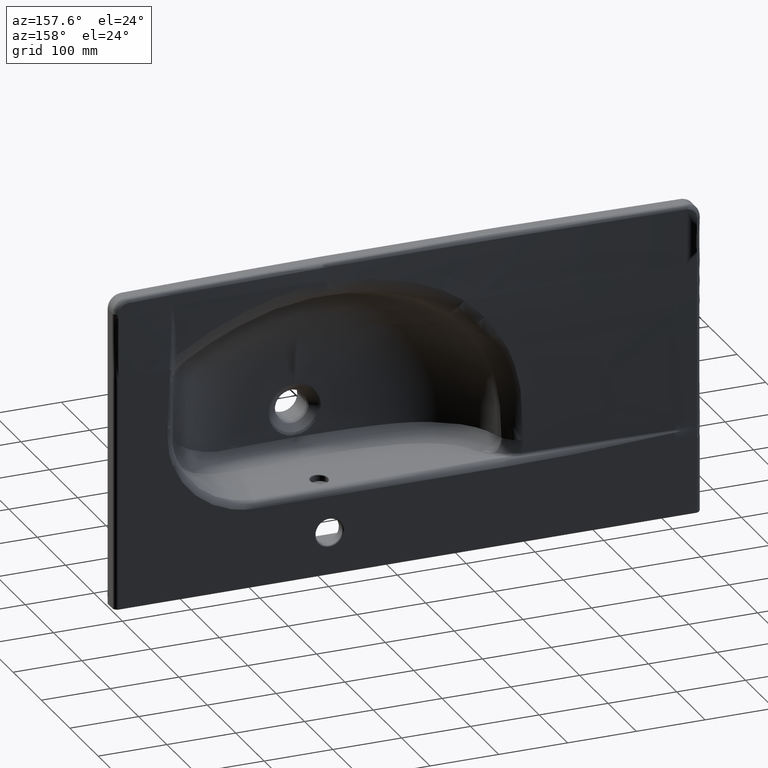
[diagram: clean part render]
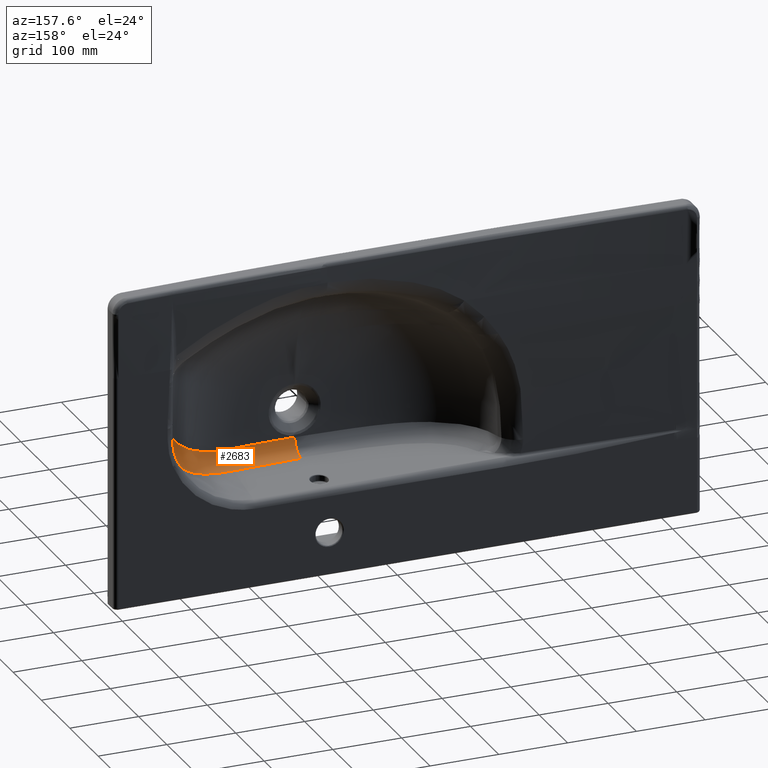
[diagram: same view with one face highlighted and labeled with its STEP entity id]
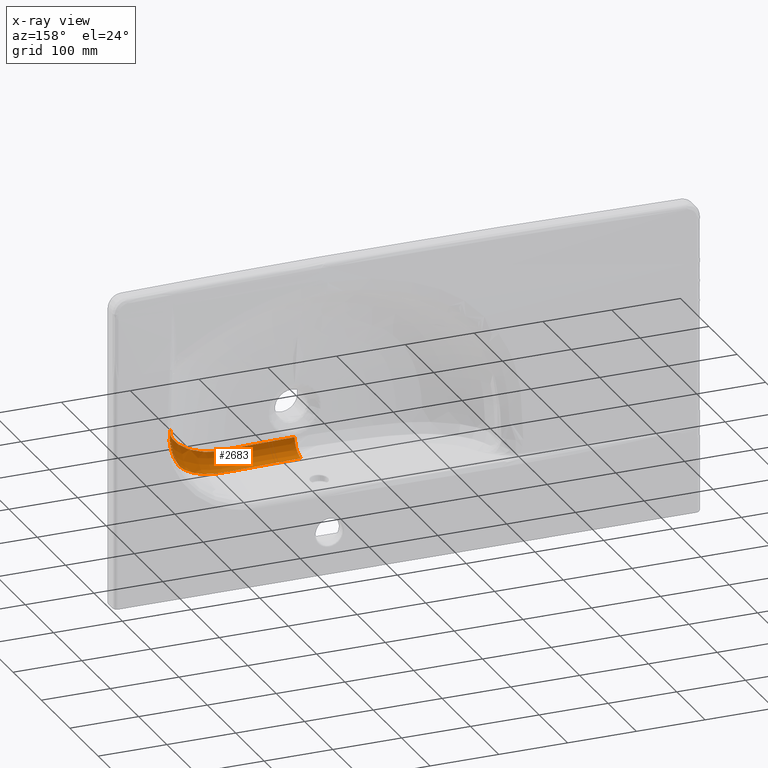
[diagram: x-ray of the same camera — body ghosted, the highlighted face saturated]
A machine part, auxiliary view. The second image highlights one B-rep face of the part: STEP entity #2683.
The next image is the same camera in x-ray: the body ghosted, the highlighted face saturated — about 0% of this face is hidden behind the body in this view.
In plain terms, the highlighted face is a freeform B-spline surface patch.
Its self-contained STEP definition (entity closure, byte-faithful):
#2255=B_SPLINE_SURFACE_WITH_KNOTS('',3,3,((#31358,#31359,#31360,#31361,
#31362,#31363,#31364,#31365,#31366,#31367,#31368,#31369,#31370,#31371,#31372,
#31373,#31374,#31375,#31376,#31377,#31378,#31379,#31380,#31381,#31382,#31383,
#31384,#31385,#31386,#31387,#31388,#31389,#31390,#31391,#31392,#31393,#31394,
#31395,#31396,#31397,#31398,#31399,#31400,#31401),(#31402,#31403,#31404,
#31405,#31406,#31407,#31408,#31409,#31410,#31411,#31412,#31413,#31414,#31415,
#31416,#31417,#31418,#31419,#31420,#31421,#31422,#31423,#31424,#31425,#31426,
#31427,#31428,#31429,#31430,#31431,#31432,#31433,#31434,#31435,#31436,#31437,
#31438,#31439,#31440,#31441,#31442,#31443,#31444,#31445),(#31446,#31447,
#31448,#31449,#31450,#31451,#31452,#31453,#31454,#31455,#31456,#31457,#31458,
#31459,#31460,#31461,#31462,#31463,#31464,#31465,#31466,#31467,#31468,#31469,
#31470,#31471,#31472,#31473,#31474,#31475,#31476,#31477,#31478,#31479,#31480,
#31481,#31482,#31483,#31484,#31485,#31486,#31487,#31488,#31489),(#31490,
#31491,#31492,#31493,#31494,#31495,#31496,#31497,#31498,#31499,#31500,#31501,
#31502,#31503,#31504,#31505,#31506,#31507,#31508,#31509,#31510,#31511,#31512,
#31513,#31514,#31515,#31516,#31517,#31518,#31519,#31520,#31521,#31522,#31523,
#31524,#31525,#31526,#31527,#31528,#31529,#31530,#31531,#31532,#31533),
(#31534,#31535,#31536,#31537,#31538,#31539,#31540,#31541,#31542,#31543,
#31544,#31545,#31546,#31547,#31548,#31549,#31550,#31551,#31552,#31553,#31554,
#31555,#31556,#31557,#31558,#31559,#31560,#31561,#31562,#31563,#31564,#31565,
#31566,#31567,#31568,#31569,#31570,#31571,#31572,#31573,#31574,#31575,#31576,
#31577),(#31578,#31579,#31580,#31581,#31582,#31583,#31584,#31585,#31586,
#31587,#31588,#31589,#31590,#31591,#31592,#31593,#31594,#31595,#31596,#31597,
#31598,#31599,#31600,#31601,#31602,#31603,#31604,#31605,#31606,#31607,#31608,
#31609,#31610,#31611,#31612,#31613,#31614,#31615,#31616,#31617,#31618,#31619,
#31620,#31621),(#31622,#31623,#31624,#31625,#31626,#31627,#31628,#31629,
#31630,#31631,#31632,#31633,#31634,#31635,#31636,#31637,#31638,#31639,#31640,
#31641,#31642,#31643,#31644,#31645,#31646,#31647,#31648,#31649,#31650,#31651,
#31652,#31653,#31654,#31655,#31656,#31657,#31658,#31659,#31660,#31661,#31662,
#31663,#31664,#31665),(#31666,#31667,#31668,#31669,#31670,#31671,#31672,
#31673,#31674,#31675,#31676,#31677,#31678,#31679,#31680,#31681,#31682,#31683,
#31684,#31685,#31686,#31687,#31688,#31689,#31690,#31691,#31692,#31693,#31694,
#31695,#31696,#31697,#31698,#31699,#31700,#31701,#31702,#31703,#31704,#31705,
#31706,#31707,#31708,#31709),(#31710,#31711,#31712,#31713,#31714,#31715,
#31716,#31717,#31718,#31719,#31720,#31721,#31722,#31723,#31724,#31725,#31726,
#31727,#31728,#31729,#31730,#31731,#31732,#31733,#31734,#31735,#31736,#31737,
#31738,#31739,#31740,#31741,#31742,#31743,#31744,#31745,#31746,#31747,#31748,
#31749,#31750,#31751,#31752,#31753),(#31754,#31755,#31756,#31757,#31758,
#31759,#31760,#31761,#31762,#31763,#31764,#31765,#31766,#31767,#31768,#31769,
#31770,#31771,#31772,#31773,#31774,#31775,#31776,#31777,#31778,#31779,#31780,
#31781,#31782,#31783,#31784,#31785,#31786,#31787,#31788,#31789,#31790,#31791,
#31792,#31793,#31794,#31795,#31796,#31797),(#31798,#31799,#31800,#31801,
#31802,#31803,#31804,#31805,#31806,#31807,#31808,#31809,#31810,#31811,#31812,
#31813,#31814,#31815,#31816,#31817,#31818,#31819,#31820,#31821,#31822,#31823,
#31824,#31825,#31826,#31827,#31828,#31829,#31830,#31831,#31832,#31833,#31834,
#31835,#31836,#31837,#31838,#31839,#31840,#31841),(#31842,#31843,#31844,
#31845,#31846,#31847,#31848,#31849,#31850,#31851,#31852,#31853,#31854,#31855,
#31856,#31857,#31858,#31859,#31860,#31861,#31862,#31863,#31864,#31865,#31866,
#31867,#31868,#31869,#31870,#31871,#31872,#31873,#31874,#31875,#31876,#31877,
#31878,#31879,#31880,#31881,#31882,#31883,#31884,#31885)),.UNSPECIFIED.,
 .F.,.F.,.F.,(4,1,1,1,1,1,1,1,1,4),(4,2,1,1,1,1,1,1,1,1,1,1,1,1,1,1,1,1,
1,1,1,1,1,1,1,1,1,1,1,1,1,1,1,1,1,1,1,1,1,1,4),(0.,0.0624548775080628,0.172908623633736,
0.28336236975941,0.393816115885084,0.504269862010757,0.614723608136431,
0.725177354262104,0.946084846513451,1.),(0.,0.00998907656897895,0.0243279484822259,
0.0386668203954729,0.0673445642219668,0.0816834361352137,0.0960223080484607,
0.110361179961708,0.117530615918331,0.124700051874955,0.153377795701448,
0.182055539527942,0.210733283354436,0.23941102718093,0.268088771007424,
0.296766514833918,0.325444258660412,0.354122002486906,0.3827997463134,0.411477490139894,
0.440155233966388,0.468832977792881,0.526188465445869,0.583543953098857,
0.612221696925351,0.640899440751845,0.669577184578339,0.683916056491586,
0.698254928404833,0.726932672231327,0.755610416057821,0.784288159884314,
0.812965903710808,0.841643647537302,0.855982519450549,0.863151955407173,
0.870321391363796,0.884660263277043,0.89899913519029,0.927676879016784,
1.),.UNSPECIFIED.);
#2683=ADVANCED_FACE('',(#4404),#2255,.T.);
#4404=FACE_OUTER_BOUND('',#5710,.T.);
#5710=EDGE_LOOP('',(#7496,#7497,#7498,#7499,#7500,#7501));
#7496=ORIENTED_EDGE('',*,*,#15359,.T.);
#7497=ORIENTED_EDGE('',*,*,#15448,.F.);
#7498=ORIENTED_EDGE('',*,*,#15449,.F.);
#7499=ORIENTED_EDGE('',*,*,#15450,.T.);
#7500=ORIENTED_EDGE('',*,*,#15451,.T.);
#7501=ORIENTED_EDGE('',*,*,#15452,.F.);
#13542=VERTEX_POINT('',#26725);
#13543=VERTEX_POINT('',#26762);
#13618=VERTEX_POINT('',#31263);
#13619=VERTEX_POINT('',#31331);
#13620=VERTEX_POINT('',#31342);
#13621=VERTEX_POINT('',#31347);
#15359=EDGE_CURVE('',#13543,#13542,#18455,.T.);
#15448=EDGE_CURVE('',#13618,#13542,#18498,.T.);
#15449=EDGE_CURVE('',#13619,#13618,#18499,.T.);
#15450=EDGE_CURVE('',#13619,#13620,#18500,.T.);
#15451=EDGE_CURVE('',#13620,#13621,#18501,.T.);
#15452=EDGE_CURVE('',#13543,#13621,#18502,.T.);
#18455=B_SPLINE_CURVE_WITH_KNOTS('',3,(#26726,#26727,#26728,#26729,#26730,
#26731,#26732,#26733,#26734,#26735,#26736,#26737,#26738,#26739,#26740,#26741,
#26742,#26743,#26744,#26745,#26746,#26747,#26748,#26749,#26750,#26751,#26752,
#26753,#26754,#26755,#26756,#26757,#26758,#26759,#26760,#26761),
 .UNSPECIFIED.,.F.,.F.,(4,2,2,2,2,2,2,2,2,2,2,2,2,2,2,2,2,4),(0.,0.0312499999999999,
0.0624999999999999,0.125,0.249999999999999,0.312499999999999,0.374999999999999,
0.437499999999999,0.499999999999999,0.624999999999999,0.687499999999999,
0.749999999999999,0.781249999999999,0.812499999999999,0.874999999999999,
0.9375,0.96875,1.),.UNSPECIFIED.);
#18498=B_SPLINE_CURVE_WITH_KNOTS('',3,(#31255,#31256,#31257,#31258,#31259,
#31260,#31261,#31262),.UNSPECIFIED.,.F.,.F.,(4,2,2,4),(0.,0.25,0.5,1.),
 .UNSPECIFIED.);
#18499=B_SPLINE_CURVE_WITH_KNOTS('',3,(#31264,#31265,#31266,#31267,#31268,
#31269,#31270,#31271,#31272,#31273,#31274,#31275,#31276,#31277,#31278,#31279,
#31280,#31281,#31282,#31283,#31284,#31285,#31286,#31287,#31288,#31289,#31290,
#31291,#31292,#31293,#31294,#31295,#31296,#31297,#31298,#31299,#31300,#31301,
#31302,#31303,#31304,#31305,#31306,#31307,#31308,#31309,#31310,#31311,#31312,
#31313,#31314,#31315,#31316,#31317,#31318,#31319,#31320,#31321,#31322,#31323,
#31324,#31325,#31326,#31327,#31328,#31329,#31330),.UNSPECIFIED.,.F.,.F.,
(4,2,2,2,2,2,2,2,2,2,2,2,2,2,2,2,2,2,1,2,2,2,2,2,2,2,2,2,2,2,2,2,2,4),(0.,
0.249999999999995,0.281249999999994,0.289062499999994,0.296874999999994,
0.312499999999994,0.374999999999994,0.499999999999994,0.562499999999994,
0.578124999999994,0.593749999999994,0.624999999999994,0.656249999999993,
0.687499999999993,0.718749999999993,0.734374999999993,0.742187499999992,
0.744140624999992,0.746093749999992,0.749999999999992,0.765624999999991,
0.773437499999991,0.777343749999991,0.779296874999991,0.78124999999999,
0.812499999999991,0.874999999999993,0.890624999999994,0.898437499999994,
0.902343749999994,0.906249999999995,0.921874999999996,0.937499999999996,
1.),.UNSPECIFIED.);
#18500=B_SPLINE_CURVE_WITH_KNOTS('',3,(#31332,#31333,#31334,#31335,#31336,
#31337,#31338,#31339,#31340,#31341),.UNSPECIFIED.,.F.,.F.,(4,2,2,2,4),(0.,
0.125,0.25,0.5,1.),.UNSPECIFIED.);
#18501=B_SPLINE_CURVE_WITH_KNOTS('',3,(#31343,#31344,#31345,#31346),
 .UNSPECIFIED.,.F.,.F.,(4,4),(0.,1.),.UNSPECIFIED.);
#18502=B_SPLINE_CURVE_WITH_KNOTS('',3,(#31348,#31349,#31350,#31351,#31352,
#31353,#31354,#31355,#31356,#31357),.UNSPECIFIED.,.F.,.F.,(4,2,2,2,4),(0.,
0.25,0.5,0.75,1.),.UNSPECIFIED.);
#26725=CARTESIAN_POINT('',(220.871732627295,-174.566007882817,-21.9861362267994));
#26726=CARTESIAN_POINT('',(-0.000193425683416863,-83.9166754389262,-119.796460674797));
#26727=CARTESIAN_POINT('',(2.8820929536467,-83.9111189527028,-119.798158556833));
#26728=CARTESIAN_POINT('',(5.76942519323192,-83.947523790746,-119.795620138209));
#26729=CARTESIAN_POINT('',(11.5499367357819,-83.9344551606723,-119.771522490917));
#26730=CARTESIAN_POINT('',(14.4430076341277,-83.9102756930449,-119.751303791861));
#26731=CARTESIAN_POINT('',(23.1239287520238,-83.9120390148392,-119.66964631728));
#26732=CARTESIAN_POINT('',(28.913601883506,-83.9507833283248,-119.584321978531));
#26733=CARTESIAN_POINT('',(46.2315053295384,-83.7618133996848,-119.198298212516));
#26734=CARTESIAN_POINT('',(57.7060879962112,-83.9263644120216,-118.803263019852));
#26735=CARTESIAN_POINT('',(74.6234226161202,-83.8820696677385,-118.075921848732));
#26736=CARTESIAN_POINT('',(80.2228316756309,-83.8637290061864,-117.802210595032));
#26737=CARTESIAN_POINT('',(91.38791820016,-83.7850333377574,-117.142272740557));
#26738=CARTESIAN_POINT('',(96.9582462695924,-83.6130872224661,-116.745889486174));
#26739=CARTESIAN_POINT('',(108.055126173767,-83.9257041219819,-115.411159121248));
#26740=CARTESIAN_POINT('',(113.566793889973,-84.5211073712481,-114.483820992584));
#26741=CARTESIAN_POINT('',(124.430033176507,-86.4934089088843,-112.164536718959));
#26742=CARTESIAN_POINT('',(129.770182808199,-87.8518772634639,-110.738627688888));
#26743=CARTESIAN_POINT('',(145.30974598724,-93.1549285246123,-105.553804450249));
#26744=CARTESIAN_POINT('',(155.162691705619,-97.9578715231482,-101.111293088678));
#26745=CARTESIAN_POINT('',(168.8893107719,-106.929108347006,-93.0686742067448));
#26746=CARTESIAN_POINT('',(173.288080282234,-110.208055472991,-90.1600758111215));
#26747=CARTESIAN_POINT('',(181.617733556069,-117.307623509724,-83.8803637370754));
#26748=CARTESIAN_POINT('',(185.521548398225,-121.143923086591,-80.5180923655352));
#26749=CARTESIAN_POINT('',(191.186506202918,-126.927146717619,-75.0826124340837));
#26750=CARTESIAN_POINT('',(193.03999725539,-128.863556131582,-73.204732066021));
#26751=CARTESIAN_POINT('',(196.597091874796,-132.794852844093,-69.3020409047752));
#26752=CARTESIAN_POINT('',(198.248623410448,-134.798046479618,-67.2438370604799));
#26753=CARTESIAN_POINT('',(202.859874513233,-140.980350726134,-60.9017165520254));
#26754=CARTESIAN_POINT('',(205.671589247011,-145.309990747555,-56.5805940336767));
#26755=CARTESIAN_POINT('',(211.044051561469,-153.818917031474,-47.5004152248847));
#26756=CARTESIAN_POINT('',(213.533018372931,-157.96907378616,-42.6647831731979));
#26757=CARTESIAN_POINT('',(216.668456130873,-164.120843147858,-35.0283646159278));
#26758=CARTESIAN_POINT('',(217.622791506449,-166.155062660033,-32.4212659905611));
#26759=CARTESIAN_POINT('',(219.358782347348,-170.29923300818,-27.1938579643675));
#26760=CARTESIAN_POINT('',(220.125469283053,-172.449680822688,-24.6019815709708));
#26761=CARTESIAN_POINT('',(220.866504904674,-174.585141603464,-21.9861362267992));
#26762=CARTESIAN_POINT('',(0.000549442719897329,-83.9833285288262,-119.798014669966));
#31255=CARTESIAN_POINT('',(211.420656162512,-122.379709404099,-21.9861362267995));
#31256=CARTESIAN_POINT('',(213.614159069108,-126.314789939835,-21.9861362267995));
#31257=CARTESIAN_POINT('',(215.401401523315,-130.403988167783,-21.9861362267995));
#31258=CARTESIAN_POINT('',(218.198296990601,-138.877368517506,-21.9861362267995));
#31259=CARTESIAN_POINT('',(219.225947341248,-143.279498963276,-21.9861362267995));
#31260=CARTESIAN_POINT('',(221.331912807987,-156.57373659212,-21.9861362267995));
#31261=CARTESIAN_POINT('',(221.466208449272,-165.611889483193,-21.9861362267995));
#31262=CARTESIAN_POINT('',(220.866504904674,-174.585141603464,-21.9861362267995));
#31263=CARTESIAN_POINT('',(211.420400529459,-122.379883358246,-21.9861246056574));
#31264=CARTESIAN_POINT('',(99.7749849557805,-62.1696870519228,-93.7317401591508));
#31265=CARTESIAN_POINT('',(114.019431165382,-62.0501635167995,-92.0224739735269));
#31266=CARTESIAN_POINT('',(127.53088126324,-64.3310374419478,-88.8429952005109));
#31267=CARTESIAN_POINT('',(141.240461948538,-68.5825774334697,-83.6364766173847));
#31268=CARTESIAN_POINT('',(142.743650394639,-69.0786209951936,-83.0353668519467));
#31269=CARTESIAN_POINT('',(144.596689706897,-69.7262870287461,-82.2557988849531));
#31270=CARTESIAN_POINT('',(144.879721348531,-69.8266872317117,-82.13514709426));
#31271=CARTESIAN_POINT('',(145.497849996806,-70.0480529507814,-81.8694032255859));
#31272=CARTESIAN_POINT('',(145.807312382374,-70.1601659099637,-81.7349853549615));
#31273=CARTESIAN_POINT('',(146.736839690253,-70.5008460995288,-81.3270865886815));
#31274=CARTESIAN_POINT('',(147.358037346099,-70.7337561045221,-81.0489599176523));
#31275=CARTESIAN_POINT('',(150.470809566018,-71.9277577378016,-79.6272661018758));
#31276=CARTESIAN_POINT('',(152.982936197586,-72.9772561000771,-78.3905279479279));
#31277=CARTESIAN_POINT('',(160.556362422508,-76.4280790086297,-74.378799521284));
#31278=CARTESIAN_POINT('',(165.656303235355,-79.1322809553661,-71.3023683790217));
#31279=CARTESIAN_POINT('',(173.241292433721,-83.8632735974724,-66.0700756227081));
#31280=CARTESIAN_POINT('',(175.758415913057,-85.5525906220947,-64.2230190514518));
#31281=CARTESIAN_POINT('',(178.872966599997,-87.8107309783761,-61.7838255170681));
#31282=CARTESIAN_POINT('',(179.494209766953,-88.2696315526443,-61.2895198794691));
#31283=CARTESIAN_POINT('',(180.733161712475,-89.2023249804188,-60.2877077638535));
#31284=CARTESIAN_POINT('',(181.377691616866,-89.696997476079,-59.7580758932133));
#31285=CARTESIAN_POINT('',(183.179492444906,-91.1057622401314,-58.2522594941977));
#31286=CARTESIAN_POINT('',(184.227849944532,-91.9576356228097,-57.3423569319038));
#31287=CARTESIAN_POINT('',(186.220741214562,-93.6203040177055,-55.5505319924566));
#31288=CARTESIAN_POINT('',(187.128043876369,-94.4017429000881,-54.7004014331121));
#31289=CARTESIAN_POINT('',(188.774605650119,-95.8501729971255,-53.0947813401758));
#31290=CARTESIAN_POINT('',(189.478637976897,-96.4833838208854,-52.3764027051025));
#31291=CARTESIAN_POINT('',(191.036469114714,-97.9127513701915,-50.7164517554621));
#31292=CARTESIAN_POINT('',(191.860871703069,-98.684752103827,-49.803301094472));
#31293=CARTESIAN_POINT('',(193.158343375913,-99.9343174620192,-48.3080130586191));
#31294=CARTESIAN_POINT('',(193.600985332725,-100.366122038242,-47.7886342828081));
#31295=CARTESIAN_POINT('',(194.279152445676,-101.037494312637,-46.9780186122036));
#31296=CARTESIAN_POINT('',(194.507574696706,-101.265229482932,-46.7025554013892));
#31297=CARTESIAN_POINT('',(194.795947901655,-101.55490732733,-46.3516405366632));
#31298=CARTESIAN_POINT('',(194.791814131436,-101.550775622387,-46.3566220738848));
#31299=CARTESIAN_POINT('',(194.845610530587,-101.604899478976,-46.2909619989905));
#31300=CARTESIAN_POINT('',(194.934366411911,-101.694262438561,-46.1825019814372));
#31301=CARTESIAN_POINT('',(195.047228649352,-101.808221781537,-46.0441222940998));
#31302=CARTESIAN_POINT('',(195.476533042184,-102.243136945686,-45.5163080416231));
#31303=CARTESIAN_POINT('',(195.990451449297,-102.766813967075,-44.8811696989475));
#31304=CARTESIAN_POINT('',(197.001245420766,-103.828609313682,-43.6071417646595));
#31305=CARTESIAN_POINT('',(197.378050418412,-104.228672020117,-43.1288986303435));
#31306=CARTESIAN_POINT('',(198.000046568923,-104.900250348234,-42.3308119014322));
#31307=CARTESIAN_POINT('',(198.216835923217,-105.136028436343,-42.0513284763844));
#31308=CARTESIAN_POINT('',(198.555759456264,-105.507898722349,-41.6118676073495));
#31309=CARTESIAN_POINT('',(198.596658452169,-105.55304124923,-41.5586283497994));
#31310=CARTESIAN_POINT('',(198.724117797555,-105.693650188059,-41.3927644389213));
#31311=CARTESIAN_POINT('',(198.787393644824,-105.763621460101,-41.31029097474));
#31312=CARTESIAN_POINT('',(199.855417722635,-106.947425247559,-39.9160429514095));
#31313=CARTESIAN_POINT('',(200.745332824934,-107.975426661237,-38.7213066032113));
#31314=CARTESIAN_POINT('',(203.102392924537,-110.773683569317,-35.4938133487373));
#31315=CARTESIAN_POINT('',(204.258990395255,-112.256185448696,-33.8181529058908));
#31316=CARTESIAN_POINT('',(205.26704157552,-113.57342670243,-32.3280623543021));
#31317=CARTESIAN_POINT('',(205.446576858829,-113.810207895241,-32.0602759778445));
#31318=CARTESIAN_POINT('',(205.683776982111,-114.124771522148,-31.704023518234));
#31319=CARTESIAN_POINT('',(205.757499003284,-114.222870453788,-31.5928314916684));
#31320=CARTESIAN_POINT('',(205.860167350137,-114.359820627717,-31.4373933302195));
#31321=CARTESIAN_POINT('',(205.882031252467,-114.388952620687,-31.4043469544571));
#31322=CARTESIAN_POINT('',(206.023433258045,-114.578182302136,-31.1891572815347));
#31323=CARTESIAN_POINT('',(206.094502903342,-114.673549813072,-31.0805488225482));
#31324=CARTESIAN_POINT('',(206.451660081844,-115.154168594926,-30.5324347692409));
#31325=CARTESIAN_POINT('',(206.733255375136,-115.536949235644,-30.093816389238));
#31326=CARTESIAN_POINT('',(207.374747684724,-116.42092456494,-29.0751906369131));
#31327=CARTESIAN_POINT('',(207.689215903404,-116.860004946811,-28.5662643440012));
#31328=CARTESIAN_POINT('',(209.231033046082,-119.040061813944,-26.0236828782246));
#31329=CARTESIAN_POINT('',(210.366864881225,-120.734914697903,-23.996122473839));
#31330=CARTESIAN_POINT('',(211.415881637419,-122.37119736144,-21.9767368242242));
#31331=CARTESIAN_POINT('',(99.7749356228727,-62.1792765351517,-93.7315083759201));
#31332=CARTESIAN_POINT('',(99.7748223155233,-62.1889120325687,-93.7314386308489));
#31333=CARTESIAN_POINT('',(95.5682610976181,-62.1711546054849,-94.2396372114404));
#31334=CARTESIAN_POINT('',(91.3439138409477,-62.2256114637453,-94.6156752193042));
#31335=CARTESIAN_POINT('',(82.8972908772587,-62.2785581656662,-95.2045799599085));
#31336=CARTESIAN_POINT('',(78.6745175954215,-62.2896143924915,-95.4263778193204));
#31337=CARTESIAN_POINT('',(66.0498888087068,-62.325757799652,-96.015158146652));
#31338=CARTESIAN_POINT('',(57.6963041388926,-62.3492195989924,-96.297249781586));
#31339=CARTESIAN_POINT('',(32.8447566948417,-62.3974863473865,-96.9845354864745));
#31340=CARTESIAN_POINT('',(16.4987667151438,-62.4103509179431,-97.1700443142768));
#31341=CARTESIAN_POINT('',(0.00109055010184033,-62.4084161088142,-97.1457248016219));
#31342=CARTESIAN_POINT('',(0.000596300480846153,-62.4083886784557,-97.1453324624579));
#31343=CARTESIAN_POINT('',(0.00145545774523137,-62.4084161511108,-97.1457253324035));
#31344=CARTESIAN_POINT('',(0.00141921858804122,-62.4595050148319,-97.8763454356125));
#31345=CARTESIAN_POINT('',(0.00138297943237283,-62.5038518842392,-98.6085958638224));
#31346=CARTESIAN_POINT('',(0.00134674027289282,-62.5652158898857,-99.338634342324));
#31347=CARTESIAN_POINT('',(0.000673370136671439,-62.56349768536,-99.3387787340425));
#31348=CARTESIAN_POINT('',(8.54236837516398E-008,-84.0475051240721,-119.799389040518));
#31349=CARTESIAN_POINT('',(-0.00157461576052142,-81.5756958148955,-119.747616628357));
#31350=CARTESIAN_POINT('',(-0.00272517058015171,-78.9401061612851,-119.263702287293));
#31351=CARTESIAN_POINT('',(-0.00401206508271444,-73.844232545554,-117.24104326946));
#31352=CARTESIAN_POINT('',(-0.0041442438914304,-71.3965591957781,-115.697520210677));
#31353=CARTESIAN_POINT('',(-0.00362802097847554,-67.2767999142405,-111.774343618862));
#31354=CARTESIAN_POINT('',(-0.00298999441406788,-65.6155426397475,-109.405002174818));
#31355=CARTESIAN_POINT('',(-0.00150847664752927,-63.346346231906,-104.414037452279));
#31356=CARTESIAN_POINT('',(-0.000677246097801988,-62.7342503606835,-101.805243095204));
#31357=CARTESIAN_POINT('',(5.09684158205808E-013,-62.5617794809066,-99.3389231257562));
#31358=CARTESIAN_POINT('',(-3.27078938923051,-62.208941628184,-94.7020971631551));
#31359=CARTESIAN_POINT('',(-2.18000074001852,-62.2129482443819,-94.70414895491));
#31360=CARTESIAN_POINT('',(-1.08921209080653,-62.2169548605798,-94.7062007466649));
#31361=CARTESIAN_POINT('',(1.56735479801236,-62.2267127948371,-94.7111977935656));
#31362=CARTESIAN_POINT('',(4.69448189968129,-62.2348063458449,-94.7132267790232));
#31363=CARTESIAN_POINT('',(10.9339787974534,-62.2527113997425,-94.7021583946126));
#31364=CARTESIAN_POINT('',(17.1558705137236,-62.269684546084,-94.66749025772));
#31365=CARTESIAN_POINT('',(23.3691487257117,-62.2741469645817,-94.6072245271915));
#31366=CARTESIAN_POINT('',(28.0270769080067,-62.2816521970203,-94.5492695839101));
#31367=CARTESIAN_POINT('',(31.9088289708137,-62.2811341580634,-94.4898231212883));
#31368=CARTESIAN_POINT('',(35.0154940269411,-62.2853533578539,-94.435449270838));
#31369=CARTESIAN_POINT('',(39.6772531848727,-62.2824417222882,-94.347099889018));
#31370=CARTESIAN_POINT('',(46.6787262386103,-62.283237960197,-94.1877748400154));
#31371=CARTESIAN_POINT('',(56.054442033561,-62.2619092064082,-93.9210837689909));
#31372=CARTESIAN_POINT('',(65.4921005134971,-62.2321994271369,-93.5987931269552));
#31373=CARTESIAN_POINT('',(74.9891796989836,-62.1968813922692,-93.1979733115325));
#31374=CARTESIAN_POINT('',(84.533663798001,-62.1623260727063,-92.6990431705015));
#31375=CARTESIAN_POINT('',(94.0868447466847,-62.0727637120342,-91.9806559697015));
#31376=CARTESIAN_POINT('',(103.604844651091,-62.0065531564685,-90.8575545300406));
#31377=CARTESIAN_POINT('',(113.026977711794,-62.4687354998635,-89.2846994335266));
#31378=CARTESIAN_POINT('',(122.244813796173,-63.6568367472791,-87.2420858076651));
#31379=CARTESIAN_POINT('',(131.165718474361,-65.4764417836679,-84.7185249114006));
#31380=CARTESIAN_POINT('',(139.707777226431,-67.797052473869,-81.7145455752871));
#31381=CARTESIAN_POINT('',(150.510177003022,-71.5035150535056,-77.1259644876305));
#31382=CARTESIAN_POINT('',(162.788504863843,-77.1126305483519,-70.4404990419759));
#31383=CARTESIAN_POINT('',(173.384307069384,-83.5422914149275,-63.1127638267364));
#31384=CARTESIAN_POINT('',(180.940673748626,-88.9928829345766,-57.0732951005678));
#31385=CARTESIAN_POINT('',(186.190518734713,-93.2299773750589,-52.4917660981578));
#31386=CARTESIAN_POINT('',(190.114847263299,-96.7323390145115,-48.396675928891));
#31387=CARTESIAN_POINT('',(193.018359779642,-99.4817626163911,-44.9809934319043));
#31388=CARTESIAN_POINT('',(195.815145392608,-102.233872876483,-41.5439936378175));
#31389=CARTESIAN_POINT('',(199.152072195296,-105.757701024476,-37.3061329124591));
#31390=CARTESIAN_POINT('',(202.867895995256,-110.097471481041,-32.2591219550249));
#31391=CARTESIAN_POINT('',(206.293802279936,-114.527249376188,-27.2204396719228));
#31392=CARTESIAN_POINT('',(209.427359092569,-118.917339761381,-22.0733023464706));
#31393=CARTESIAN_POINT('',(211.777145646777,-122.429704184629,-17.5841426899156));
#31394=CARTESIAN_POINT('',(213.309596728985,-124.826539564564,-14.3591712350138));
#31395=CARTESIAN_POINT('',(214.152930130225,-126.189316927343,-12.5019386325514));
#31396=CARTESIAN_POINT('',(214.977330862719,-127.551001392588,-10.638831304892));
#31397=CARTESIAN_POINT('',(215.974946327006,-129.254264449691,-8.30244022621986));
#31398=CARTESIAN_POINT('',(217.503179107942,-131.997301369277,-4.55770711004986));
#31399=CARTESIAN_POINT('',(220.384758155684,-137.62293876424,2.95378434085585));
#31400=CARTESIAN_POINT('',(222.587535425626,-143.031480911762,9.30447818968415));
#31401=CARTESIAN_POINT('',(224.146860771699,-146.931432707577,13.8392352904322));
#31402=CARTESIAN_POINT('',(-3.26528834297998,-62.279317731609,-95.5142726836677));
#31403=CARTESIAN_POINT('',(-2.17634683148063,-62.2816234240932,-95.5162048487573));
#31404=CARTESIAN_POINT('',(-1.08740531998127,-62.2839291165775,-95.518137013847));
#31405=CARTESIAN_POINT('',(1.56466294768858,-62.2895445273299,-95.5228427153637));
#31406=CARTESIAN_POINT('',(4.68709157093241,-62.293840992508,-95.5246026183385));
#31407=CARTESIAN_POINT('',(10.9194325320914,-62.3033629492199,-95.5130000465086));
#31408=CARTESIAN_POINT('',(17.1372342851315,-62.3119162972385,-95.4778268036116));
#31409=CARTESIAN_POINT('',(23.3489206854851,-62.3117359737561,-95.4171904127392));
#31410=CARTESIAN_POINT('',(28.0067526773587,-62.3141649547314,-95.3588701675176));
#31411=CARTESIAN_POINT('',(31.8892329948444,-62.3114912411816,-95.299103400315));
#31412=CARTESIAN_POINT('',(34.9968772917785,-62.312325867597,-95.2444357930443));
#31413=CARTESIAN_POINT('',(39.660487729778,-62.3072991614234,-95.1555638683432));
#31414=CARTESIAN_POINT('',(46.6659983607812,-62.302746983467,-94.9954643658113));
#31415=CARTESIAN_POINT('',(56.0485663559482,-62.2807512840467,-94.7274972638789));
#31416=CARTESIAN_POINT('',(65.4933410126608,-62.2521396187994,-94.4048436496236));
#31417=CARTESIAN_POINT('',(74.997189179228,-62.2177745162767,-94.0037209267992));
#31418=CARTESIAN_POINT('',(84.5485856175952,-62.1861766104179,-93.5049713038297));
#31419=CARTESIAN_POINT('',(94.1097578015551,-62.101352173472,-92.7892934797131));
#31420=CARTESIAN_POINT('',(103.637752356233,-62.0398580914965,-91.6717396219851));
#31421=CARTESIAN_POINT('',(113.072344513456,-62.5111698735009,-90.1034849158852));
#31422=CARTESIAN_POINT('',(122.305480698384,-63.7121868150617,-88.0659221553863));
#31423=CARTESIAN_POINT('',(131.24603000285,-65.5447129934347,-85.5481614728373));
#31424=CARTESIAN_POINT('',(139.810008125312,-67.8864971391341,-82.5471247149932));
#31425=CARTESIAN_POINT('',(150.648558955677,-71.6242861339872,-77.9623227849346));
#31426=CARTESIAN_POINT('',(162.982522398831,-77.2860789162392,-71.2760185870587));
#31427=CARTESIAN_POINT('',(173.646108279551,-83.7913433341027,-63.9289276289991));
#31428=CARTESIAN_POINT('',(181.2555210023,-89.3192697509996,-57.8576610935026));
#31429=CARTESIAN_POINT('',(186.542843477168,-93.6201883673344,-53.24324801229));
#31430=CARTESIAN_POINT('',(190.502280706392,-97.1778308143803,-49.1173060032116));
#31431=CARTESIAN_POINT('',(193.432118251705,-99.9751661041704,-45.6737326724278));
#31432=CARTESIAN_POINT('',(196.248204764924,-102.778119302823,-42.2031547781606));
#31433=CARTESIAN_POINT('',(199.603042027675,-106.369206772502,-37.9180672379379));
#31434=CARTESIAN_POINT('',(203.33774983686,-110.790081059278,-32.8071337444991));
#31435=CARTESIAN_POINT('',(206.777241454301,-115.295866865701,-27.6918060177121));
#31436=CARTESIAN_POINT('',(209.912596773686,-119.760377184484,-22.4573056986549));
#31437=CARTESIAN_POINT('',(212.253939470216,-123.337988916139,-17.892143249346));
#31438=CARTESIAN_POINT('',(213.775034249907,-125.786825436398,-14.6165933667367));
#31439=CARTESIAN_POINT('',(214.611555209908,-127.178888113868,-12.7298231753918));
#31440=CARTESIAN_POINT('',(215.428433821798,-128.568871480586,-10.836074696333));
#31441=CARTESIAN_POINT('',(216.415165613893,-130.305445385465,-8.45919382787052));
#31442=CARTESIAN_POINT('',(217.924042481495,-133.09899583319,-4.64685112006155));
#31443=CARTESIAN_POINT('',(220.762283168878,-138.819540574066,3.00689273784924));
#31444=CARTESIAN_POINT('',(222.917761846715,-144.295260605958,9.49554658298023));
#31445=CARTESIAN_POINT('',(224.44269331777,-148.242421328934,14.1298441069825));
#31446=CARTESIAN_POINT('',(-3.25005849426877,-62.4741565603031,-97.7628104601235));
#31447=CARTESIAN_POINT('',(-2.16623085141021,-62.4717531829762,-97.7644114343943));
#31448=CARTESIAN_POINT('',(-1.08240320855166,-62.4693498056493,-97.7660124086651));
#31449=CARTESIAN_POINT('',(1.55721046114017,-62.4634964878387,-97.7699115097794));
#31450=CARTESIAN_POINT('',(4.66663117419231,-62.4572805813518,-97.7709264480111));
#31451=CARTESIAN_POINT('',(10.8791606618531,-62.4435936254218,-97.7578449586796));
#31452=CARTESIAN_POINT('',(17.0856392013821,-62.4288364523508,-97.7212733112464));
#31453=CARTESIAN_POINT('',(23.2929186127259,-62.4158025270731,-97.6596107335897));
#31454=CARTESIAN_POINT('',(27.9504842978824,-62.4041777193169,-97.6002791365221));
#31455=CARTESIAN_POINT('',(31.8349808152101,-62.3955359414346,-97.5396255943157));
#31456=CARTESIAN_POINT('',(34.9453361763052,-62.3870002520759,-97.484144710492));
#31457=CARTESIAN_POINT('',(39.6140719512081,-62.3761178951944,-97.3938261066208));
#31458=CARTESIAN_POINT('',(46.6307607632546,-62.3567584313576,-97.2315825010317));
#31459=CARTESIAN_POINT('',(56.0322993265427,-62.3329162684459,-96.9600826606358));
#31460=CARTESIAN_POINT('',(65.4967753801846,-62.3073447722304,-96.6364241444509));
#31461=CARTESIAN_POINT('',(75.0193637196377,-62.2756178979258,-96.234462811353));
#31462=CARTESIAN_POINT('',(84.589897223527,-62.2522077005935,-95.7362129592711));
#31463=CARTESIAN_POINT('',(94.1731934360317,-62.1805003796046,-95.0280361440738));
#31464=CARTESIAN_POINT('',(103.728858547294,-62.1320640280969,-93.9258409708033));
#31465=CARTESIAN_POINT('',(113.19794417111,-62.6286509964038,-92.3703226146322));
#31466=CARTESIAN_POINT('',(122.473439246701,-63.8654255118642,-90.346743360512));
#31467=CARTESIAN_POINT('',(131.46837542097,-65.7337243466803,-87.8450407827953));
#31468=CARTESIAN_POINT('',(140.093038125905,-68.1341279820635,-84.8521506610316));
#31469=CARTESIAN_POINT('',(151.031674477218,-71.9586453087069,-80.2778114676695));
#31470=CARTESIAN_POINT('',(163.519667074702,-77.7662770970622,-73.5891851534443));
#31471=CARTESIAN_POINT('',(174.370914551242,-84.4808527251406,-66.1885071100524));
#31472=CARTESIAN_POINT('',(182.127187194914,-90.2228836471693,-60.0292071708437));
#31473=CARTESIAN_POINT('',(187.518267474791,-94.7005018399272,-55.3237533089573));
#31474=CARTESIAN_POINT('',(191.574904431997,-98.4111912343966,-51.1123968475377));
#31475=CARTESIAN_POINT('',(194.577623787473,-101.341171792949,-47.5916067183825));
#31476=CARTESIAN_POINT('',(197.447145552364,-104.284885535515,-44.0280666197516));
#31477=CARTESIAN_POINT('',(200.851568582015,-108.0621829091,-39.6122299069645));
#31478=CARTESIAN_POINT('',(204.63855746474,-112.707596130426,-34.3243245234067));
#31479=CARTESIAN_POINT('',(208.115660575198,-117.423812632552,-28.9968010690141));
#31480=CARTESIAN_POINT('',(211.25599512662,-122.094357272455,-23.5204330915211));
#31481=CARTESIAN_POINT('',(213.573960692854,-125.852608575311,-18.7448541173267));
#31482=CARTESIAN_POINT('',(215.063615131676,-128.445412163627,-15.3292759988228));
#31483=CARTESIAN_POINT('',(215.881275597745,-129.918552311072,-13.3607299071335));
#31484=CARTESIAN_POINT('',(216.677328942304,-131.386882226522,-11.3821502743453));
#31485=CARTESIAN_POINT('',(217.633928887952,-133.215678437659,-8.89317193482534));
#31486=CARTESIAN_POINT('',(219.089218198148,-136.149077444439,-4.89364958787253));
#31487=CARTESIAN_POINT('',(221.807475042165,-142.132376660372,3.15392528668954));
#31488=CARTESIAN_POINT('',(223.832005829512,-147.794081133967,10.0245264516937));
#31489=CARTESIAN_POINT('',(225.261716593594,-151.87194150675,14.9344052956434));
#31490=CARTESIAN_POINT('',(-3.22865143176369,-62.6422986987466,-101.476924369836));
#31491=CARTESIAN_POINT('',(-2.15202052557726,-62.6475388193586,-101.47671443381));
#31492=CARTESIAN_POINT('',(-1.07538961939083,-62.6527789399707,-101.476504497784));
#31493=CARTESIAN_POINT('',(1.54669672054328,-62.6655410189687,-101.475993207998));
#31494=CARTESIAN_POINT('',(4.63790974136223,-62.6848220669717,-101.472213136364));
#31495=CARTESIAN_POINT('',(10.823070257073,-62.713185666584,-101.449823465266));
#31496=CARTESIAN_POINT('',(17.0144612756716,-62.7324684393301,-101.404467370536));
#31497=CARTESIAN_POINT('',(23.2164639598271,-62.7631707812295,-101.335014330652));
#31498=CARTESIAN_POINT('',(27.8743169475134,-62.7734958718922,-101.26963381901));
#31499=CARTESIAN_POINT('',(31.7621299178992,-62.7896259820351,-101.204024187568));
#31500=CARTESIAN_POINT('',(34.876596734001,-62.7916673553652,-101.144501308195));
#31501=CARTESIAN_POINT('',(39.5529000744234,-62.8084049232208,-101.047840678583));
#31502=CARTESIAN_POINT('',(46.5854296291016,-62.8143849167554,-100.876471885398));
#31503=CARTESIAN_POINT('',(56.0123396162771,-62.8411984669019,-100.592421907728));
#31504=CARTESIAN_POINT('',(65.5011825027902,-62.8626390320216,-100.261061501288));
#31505=CARTESIAN_POINT('',(75.0445713344663,-62.8664209281524,-99.8523608396146));
#31506=CARTESIAN_POINT('',(84.6347758531386,-62.8775766557271,-99.3502394495486));
#31507=CARTESIAN_POINT('',(94.241069389916,-62.8392835058619,-98.6503235780879));
#31508=CARTESIAN_POINT('',(103.82746392972,-62.8157412121768,-97.5699097692079));
#31509=CARTESIAN_POINT('',(113.337314002848,-63.3496286586622,-96.0325029852608));
#31510=CARTESIAN_POINT('',(122.665528202669,-64.6340739118303,-94.0296912372354));
#31511=CARTESIAN_POINT('',(131.732170948351,-66.5440672076351,-91.5527525206348));
#31512=CARTESIAN_POINT('',(140.438348104372,-69.0184129291731,-88.5722418749416));
#31513=CARTESIAN_POINT('',(151.516688495518,-72.9497139717112,-84.0145078103604));
#31514=CARTESIAN_POINT('',(164.226482799145,-78.9432153305964,-77.3227738771572));
#31515=CARTESIAN_POINT('',(175.355755217631,-85.9411297963928,-69.8367037980871));
#31516=CARTESIAN_POINT('',(183.33059860268,-91.9855905446658,-63.5360507351019));
#31517=CARTESIAN_POINT('',(188.876105196218,-96.7169076346841,-58.6840580872509));
#31518=CARTESIAN_POINT('',(193.080003626568,-100.649567051223,-54.335320309267));
#31519=CARTESIAN_POINT('',(196.193232074037,-103.774887841079,-50.6902843217781));
#31520=CARTESIAN_POINT('',(199.141891757549,-106.928066214851,-46.9768390916141));
#31521=CARTESIAN_POINT('',(202.618035653221,-110.985806510641,-42.350047958881));
#31522=CARTESIAN_POINT('',(206.481064644933,-115.973218894154,-36.7765112964996));
#31523=CARTESIAN_POINT('',(210.012188784012,-121.012807465872,-31.1060256395642));
#31524=CARTESIAN_POINT('',(213.155299256135,-126.004820136219,-25.2384474019091));
#31525=CARTESIAN_POINT('',(215.432504198802,-130.050709373311,-20.1226421105078));
#31526=CARTESIAN_POINT('',(216.870080647049,-132.876595655877,-16.4809605511957));
#31527=CARTESIAN_POINT('',(217.656861285592,-134.481891547062,-14.3803710024885));
#31528=CARTESIAN_POINT('',(218.419049380484,-136.07852850317,-12.2647689170234));
#31529=CARTESIAN_POINT('',(219.327046095213,-138.059556180328,-9.59463559905675));
#31530=CARTESIAN_POINT('',(220.696749644709,-141.226603820424,-5.29255174067157));
#31531=CARTESIAN_POINT('',(223.225962718992,-147.658060226517,3.39169286892711));
#31532=CARTESIAN_POINT('',(225.049337264814,-153.659231553315,10.8799544847795));
#31533=CARTESIAN_POINT('',(226.333006912489,-157.977196598327,16.2354958212521));
#31534=CARTESIAN_POINT('',(-3.20967483376542,-63.7914063129844,-105.682693067099));
#31535=CARTESIAN_POINT('',(-2.1394408506294,-63.7990435776929,-105.680097044765));
#31536=CARTESIAN_POINT('',(-1.06920686749337,-63.8066808424014,-105.677501022431));
#31537=CARTESIAN_POINT('',(1.53730005292781,-63.8252810584565,-105.671178526337));
#31538=CARTESIAN_POINT('',(4.61251942854681,-63.8561086560971,-105.660994487068));
#31539=CARTESIAN_POINT('',(10.7743446288934,-63.899079267565,-105.626033413497));
#31540=CARTESIAN_POINT('',(16.9539681714952,-63.9264608573136,-105.568595855674));
#31541=CARTESIAN_POINT('',(23.15307455176,-63.9792622544842,-105.4881353147));
#31542=CARTESIAN_POINT('',(27.8124665818901,-63.9947523146718,-105.414222535127));
#31543=CARTESIAN_POINT('',(31.7041566002179,-64.0237910616004,-105.341579080043));
#31544=CARTESIAN_POINT('',(34.82285218488,-64.0259448107674,-105.276329648379));
#31545=CARTESIAN_POINT('',(39.5065701204556,-64.0571751337499,-105.170745719632));
#31546=CARTESIAN_POINT('',(46.5533934681796,-64.0682023485893,-104.986426624701));
#31547=CARTESIAN_POINT('',(56.0002842844763,-64.1256084864768,-104.684689350937));
#31548=CARTESIAN_POINT('',(65.5042702543138,-64.1771206354702,-104.341407281387));
#31549=CARTESIAN_POINT('',(75.0553537294012,-64.2008663602744,-103.922074938569));
#31550=CARTESIAN_POINT('',(84.6490390873856,-64.2338316802497,-103.412908037899));
#31551=CARTESIAN_POINT('',(94.260195205233,-64.2185538265652,-102.72043509951));
#31552=CARTESIAN_POINT('',(103.858371153381,-64.2102202792292,-101.663643942014));
#31553=CARTESIAN_POINT('',(113.389999461944,-64.7755854454142,-100.146005689862));
#31554=CARTESIAN_POINT('',(122.752618540789,-66.1050005600461,-98.1665738295789));
#31555=CARTESIAN_POINT('',(131.874901856886,-68.0539446116802,-95.7182620644634));
#31556=CARTESIAN_POINT('',(140.647605767821,-70.6055248831573,-92.7525381857753));
#31557=CARTESIAN_POINT('',(151.85065668735,-74.6496249113989,-88.215582739836));
#31558=CARTESIAN_POINT('',(164.771968550946,-80.8448447820508,-81.5238618645221));
#31559=CARTESIAN_POINT('',(176.181695140335,-88.1550929590627,-73.9446319862985));
#31560=CARTESIAN_POINT('',(184.379854414487,-94.5344105244947,-67.4861421777269));
#31561=CARTESIAN_POINT('',(190.083848561864,-99.5461027590065,-62.4695032818654));
#31562=CARTESIAN_POINT('',(194.443619628688,-103.722589874295,-57.9666986571514));
#31563=CARTESIAN_POINT('',(197.674450467215,-107.062252048616,-54.1822672353392));
#31564=CARTESIAN_POINT('',(200.705052179687,-110.445226733466,-50.299850930166));
#31565=CARTESIAN_POINT('',(204.25385618646,-114.809862320745,-45.4351076058994));
#31566=CARTESIAN_POINT('',(208.196006103,-120.168163197423,-39.5394320764781));
#31567=CARTESIAN_POINT('',(211.784539105595,-125.552682473594,-33.4812261025042));
#31568=CARTESIAN_POINT('',(214.929554734852,-130.882828073405,-27.1710357465007));
#31569=CARTESIAN_POINT('',(217.161982799223,-135.229448621593,-21.671091941673));
#31570=CARTESIAN_POINT('',(218.542952906175,-138.300612561719,-17.7753390494974));
#31571=CARTESIAN_POINT('',(219.296749244394,-140.044162457527,-15.5264555192478));
#31572=CARTESIAN_POINT('',(220.022918628074,-141.77408115156,-13.2568801168796));
#31573=CARTESIAN_POINT('',(220.879429300247,-143.911277972754,-10.3830010782532));
#31574=CARTESIAN_POINT('',(222.159532957651,-147.314608426019,-5.74064624385178));
#31575=CARTESIAN_POINT('',(224.494756010214,-154.189655238866,3.65907047056177));
#31576=CARTESIAN_POINT('',(226.119731162812,-160.503779678845,11.8403192857108));
#31577=CARTESIAN_POINT('',(227.259731889264,-165.0415992941,17.6958169388344));
#31578=CARTESIAN_POINT('',(-3.19750536002965,-65.7325155152313,-109.577661193791));
#31579=CARTESIAN_POINT('',(-2.13139925858276,-65.7397194027347,-109.573843285046));
#31580=CARTESIAN_POINT('',(-1.06529315713586,-65.7469232902381,-109.5700253763));
#31581=CARTESIAN_POINT('',(1.53116049235677,-65.7644680355251,-109.56072703059));
#31582=CARTESIAN_POINT('',(4.59633688798848,-65.7988989604645,-109.547346481016));
#31583=CARTESIAN_POINT('',(10.7445496518096,-65.841289421345,-109.50571436881));
#31584=CARTESIAN_POINT('',(16.9189745378955,-65.8625828081037,-109.441361196829));
#31585=CARTESIAN_POINT('',(23.1188266104363,-65.9241988212024,-109.354399111454));
#31586=CARTESIAN_POINT('',(27.7810825774891,-65.9353174212822,-109.275022241008));
#31587=CARTESIAN_POINT('',(31.6766288944619,-65.9696532048222,-109.19765791417));
#31588=CARTESIAN_POINT('',(34.7988901559347,-65.9660191091735,-109.128395302161));
#31589=CARTESIAN_POINT('',(39.4883957589795,-66.0030748181781,-109.016325806547));
#31590=CARTESIAN_POINT('',(46.5447546789483,-66.006811441646,-108.822234276783));
#31591=CARTESIAN_POINT('',(56.000791799599,-66.0795795408625,-108.50617481427));
#31592=CARTESIAN_POINT('',(65.5050505697152,-66.1469573142043,-108.153613385742));
#31593=CARTESIAN_POINT('',(75.045377118977,-66.17729045144,-107.72571810801));
#31594=CARTESIAN_POINT('',(84.6209649329334,-66.2193233672547,-107.211150130387));
#31595=CARTESIAN_POINT('',(94.2127329064943,-66.2147581092671,-106.527489491459));
#31596=CARTESIAN_POINT('',(103.796221667701,-66.209574780271,-105.495564529793));
#31597=CARTESIAN_POINT('',(113.321396218573,-66.7944081870179,-103.99896177726));
#31598=CARTESIAN_POINT('',(122.688879257563,-68.1566376092445,-102.044349441235));
#31599=CARTESIAN_POINT('',(131.836407771528,-70.1320356645044,-99.6264261781347));
#31600=CARTESIAN_POINT('',(140.644843083251,-72.7478174117796,-96.6777217763134));
#31601=CARTESIAN_POINT('',(151.93161671301,-76.8863637328159,-92.1653491016987));
#31602=CARTESIAN_POINT('',(165.014483770372,-83.2580448262399,-85.4803206000496));
#31603=CARTESIAN_POINT('',(176.659428520364,-90.8509800376409,-77.8181707071347));
#31604=CARTESIAN_POINT('',(185.049368577271,-97.5380229516598,-71.2127692430326));
#31605=CARTESIAN_POINT('',(190.890980271759,-102.807839542077,-66.0411937932646));
#31606=CARTESIAN_POINT('',(195.391928798718,-107.207864273325,-61.3938013351408));
#31607=CARTESIAN_POINT('',(198.730451020836,-110.744489548695,-57.478464873261));
#31608=CARTESIAN_POINT('',(201.83438958922,-114.339085595819,-53.4361975506205));
#31609=CARTESIAN_POINT('',(205.447687702842,-118.986343064853,-48.3461293645712));
#31610=CARTESIAN_POINT('',(209.463758550491,-124.683721661444,-42.1455806216471));
#31611=CARTESIAN_POINT('',(213.109554106353,-130.378483063643,-35.7191820873268));
#31612=CARTESIAN_POINT('',(216.261836738055,-136.009000085717,-28.9883187181401));
#31613=CARTESIAN_POINT('',(218.458924984926,-140.622160645347,-23.1246528156838));
#31614=CARTESIAN_POINT('',(219.792702174276,-143.913153193787,-18.9903056363141));
#31615=CARTESIAN_POINT('',(220.519723853395,-145.779969688139,-16.6023202083401));
#31616=CARTESIAN_POINT('',(221.216647329903,-147.627881920794,-14.1881987206451));
#31617=CARTESIAN_POINT('',(222.031211647669,-149.901566027583,-11.1228047327713));
#31618=CARTESIAN_POINT('',(223.239345183304,-153.50843636672,-6.16072605897638));
#31619=CARTESIAN_POINT('',(225.423397221641,-160.757354241482,3.910118419142));
#31620=CARTESIAN_POINT('',(226.903553653664,-167.315010193366,12.7389951807315));
#31621=CARTESIAN_POINT('',(227.939156090056,-172.022503953844,19.0616023694792));
#31622=CARTESIAN_POINT('',(-3.19292884292233,-68.3952229059094,-113.020801789521));
#31623=CARTESIAN_POINT('',(-2.12841963767703,-68.4000705198097,-113.017150280392));
#31624=CARTESIAN_POINT('',(-1.06391043243173,-68.4049181337099,-113.013498771263));
#31625=CARTESIAN_POINT('',(1.52865404790142,-68.4167242801951,-113.004605684363));
#31626=CARTESIAN_POINT('',(4.59042086698288,-68.4493403774904,-112.991874185134));
#31627=CARTESIAN_POINT('',(10.7358448876255,-68.4806999659413,-112.950730074446));
#31628=CARTESIAN_POINT('',(16.9123624447165,-68.4859973420336,-112.88586458992));
#31629=CARTESIAN_POINT('',(23.1169837801587,-68.5469921417477,-112.798133289576));
#31630=CARTESIAN_POINT('',(27.7835536358881,-68.5468806649663,-112.717277280827));
#31631=CARTESIAN_POINT('',(31.6829132329817,-68.5809650722243,-112.638268623616));
#31632=CARTESIAN_POINT('',(34.8079880455706,-68.5671957951102,-112.567318108706));
#31633=CARTESIAN_POINT('',(39.501451954726,-68.6036428453404,-112.452120304628));
#31634=CARTESIAN_POINT('',(46.5620350245561,-68.5907472853298,-112.252822128128));
#31635=CARTESIAN_POINT('',(56.0151886928385,-68.66694023165,-111.927694848107));
#31636=CARTESIAN_POINT('',(65.5032718641608,-68.7386229854287,-111.570444618325));
#31637=CARTESIAN_POINT('',(75.0125036640346,-68.7642174898951,-111.138082682605));
#31638=CARTESIAN_POINT('',(84.5462959037705,-68.8040846834558,-110.621885156869));
#31639=CARTESIAN_POINT('',(94.092146714083,-68.7989495585756,-109.950653130868));
#31640=CARTESIAN_POINT('',(103.632117498478,-68.7854429692305,-108.947224995838));
#31641=CARTESIAN_POINT('',(113.120234948737,-69.3779382501477,-107.475472223782));
#31642=CARTESIAN_POINT('',(122.460735269763,-70.7607008542711,-105.549847275639));
#31643=CARTESIAN_POINT('',(131.600948186159,-72.7496551565497,-103.167003293655));
#31644=CARTESIAN_POINT('',(140.412369203764,-75.4159821205026,-100.240701595994));
#31645=CARTESIAN_POINT('',(151.739663708399,-79.6295658900188,-95.7612386369686));
#31646=CARTESIAN_POINT('',(164.932267505966,-86.1508415365223,-89.0958899733585));
#31647=CARTESIAN_POINT('',(176.767051869576,-93.9951771495326,-81.3683761269389));
#31648=CARTESIAN_POINT('',(185.318450687037,-100.961696641648,-74.6335271451954));
#31649=CARTESIAN_POINT('',(191.278458037538,-106.466699406368,-69.3219924221205));
#31650=CARTESIAN_POINT('',(195.90793981823,-111.069568706122,-64.5442004559998));
#31651=CARTESIAN_POINT('',(199.346327089453,-114.785584971108,-60.5104187356872));
#31652=CARTESIAN_POINT('',(202.517390402664,-118.573528174824,-56.3215278468694));
#31653=CARTESIAN_POINT('',(206.190609533738,-123.479204006919,-51.0241614727261));
#31654=CARTESIAN_POINT('',(210.280750102215,-129.484297010841,-44.5429288327609));
#31655=CARTESIAN_POINT('',(213.990122715917,-135.455476264732,-37.7752538953036));
#31656=CARTESIAN_POINT('',(217.16268178735,-141.349937601378,-30.6535300436046));
#31657=CARTESIAN_POINT('',(219.341291539941,-146.196994995242,-24.4535407408905));
#31658=CARTESIAN_POINT('',(220.643070836631,-149.683703050701,-20.1011938669994));
#31659=CARTESIAN_POINT('',(221.353002975217,-151.659637539528,-17.5862899056265));
#31660=CARTESIAN_POINT('',(222.031044853274,-153.611145291712,-15.0400859126321));
#31661=CARTESIAN_POINT('',(222.81791235664,-156.002845965206,-11.7992884773578));
#31662=CARTESIAN_POINT('',(223.979724099594,-159.782669911999,-6.54442761310985));
#31663=CARTESIAN_POINT('',(226.073043056533,-167.340763292029,4.13977188499731));
#31664=CARTESIAN_POINT('',(227.480616080965,-174.078450679258,13.5579459293909));
#31665=CARTESIAN_POINT('',(228.464629977101,-178.90976385338,20.3054594116451));
#31666=CARTESIAN_POINT('',(-3.19673111480531,-71.6901292856006,-115.86509911811));
#31667=CARTESIAN_POINT('',(-2.13102587614789,-71.6920764286278,-115.863374895583));
#31668=CARTESIAN_POINT('',(-1.06532063749047,-71.694023571655,-115.861650673055));
#31669=CARTESIAN_POINT('',(1.53015672863667,-71.6987657512676,-115.857451406334));
#31670=CARTESIAN_POINT('',(4.59583011282907,-71.7279853425484,-115.850266067313));
#31671=CARTESIAN_POINT('',(10.7503898981476,-71.7450628472667,-115.818804202776));
#31672=CARTESIAN_POINT('',(16.9370139618045,-71.7309654583079,-115.761770158439));
#31673=CARTESIAN_POINT('',(23.150809705232,-71.7877612246968,-115.680861845453));
#31674=CARTESIAN_POINT('',(27.8232684586662,-71.7736388927021,-115.60386981032));
#31675=CARTESIAN_POINT('',(31.7263760481291,-71.8050668633722,-115.527397495622));
#31676=CARTESIAN_POINT('',(34.8534232521948,-71.7791817692313,-115.457952831578));
#31677=CARTESIAN_POINT('',(39.5488136724272,-71.8119906498731,-115.344272748989));
#31678=CARTESIAN_POINT('',(46.6077562681516,-71.777691661565,-115.146217907482));
#31679=CARTESIAN_POINT('',(56.0448014953885,-71.850400529272,-114.819713333745));
#31680=CARTESIAN_POINT('',(65.4986825528173,-71.918869026864,-114.464753257649));
#31681=CARTESIAN_POINT('',(74.9545955254144,-71.9315323060818,-114.034389933013));
#31682=CARTESIAN_POINT('',(84.4207745138851,-71.9603047841046,-113.522712325356));
#31683=CARTESIAN_POINT('',(93.8919008483813,-71.9448713532947,-112.869940458586));
#31684=CARTESIAN_POINT('',(103.357160671506,-71.9124505738616,-111.901120659594));
#31685=CARTESIAN_POINT('',(112.775246328438,-72.501091263559,-110.460607223503));
#31686=CARTESIAN_POINT('',(122.054611494162,-73.8918820035899,-108.570834747808));
#31687=CARTESIAN_POINT('',(131.152782594659,-75.8808358813491,-106.230608743571));
#31688=CARTESIAN_POINT('',(139.932493282457,-78.5830367199447,-103.335119941752));
#31689=CARTESIAN_POINT('',(151.254892809419,-82.8505258612995,-98.9012061246136));
#31690=CARTESIAN_POINT('',(164.503558806274,-89.4918790640939,-92.27450473449));
#31691=CARTESIAN_POINT('',(176.482661699833,-97.5535419142838,-84.5061377933697));
#31692=CARTESIAN_POINT('',(185.166410339792,-104.769293572573,-77.6655675669958));
#31693=CARTESIAN_POINT('',(191.227239570838,-110.485243217514,-72.2341249513448));
#31694=CARTESIAN_POINT('',(195.974661368794,-115.269408482301,-67.3446884269703));
#31695=CARTESIAN_POINT('',(199.507172027617,-119.146735816604,-63.2087916289943));
#31696=CARTESIAN_POINT('',(202.741541036534,-123.109375057446,-58.8905244825828));
#31697=CARTESIAN_POINT('',(206.473701010519,-128.249064653277,-53.4092005091617));
#31698=CARTESIAN_POINT('',(210.643408872978,-134.530778380407,-46.678340886661));
#31699=CARTESIAN_POINT('',(214.429133863913,-140.745410591984,-39.6036925514878));
#31700=CARTESIAN_POINT('',(217.642626404343,-146.868917094363,-32.1288551966008));
#31701=CARTESIAN_POINT('',(219.827043248294,-151.919124281946,-25.627033190476));
#31702=CARTESIAN_POINT('',(221.117801278521,-155.579123515245,-21.0825099960542));
#31703=CARTESIAN_POINT('',(221.823804472484,-157.651100612758,-18.4559360501633));
#31704=CARTESIAN_POINT('',(222.496920565488,-159.692952862979,-15.7932304467606));
#31705=CARTESIAN_POINT('',(223.275050646323,-162.185774546676,-12.3971365612727));
#31706=CARTESIAN_POINT('',(224.424207484448,-166.110800906671,-6.88304355685896));
#31707=CARTESIAN_POINT('',(226.504850218154,-173.920064760623,4.34278434534101));
#31708=CARTESIAN_POINT('',(227.930729788299,-180.782339247117,14.2782807472926));
#31709=CARTESIAN_POINT('',(228.929504012623,-185.697508926902,21.3986470684697));
#31710=CARTESIAN_POINT('',(-3.21355948156658,-76.7329763775194,-118.736503590798));
#31711=CARTESIAN_POINT('',(-2.14233997477354,-76.7317091383158,-118.737659279386));
#31712=CARTESIAN_POINT('',(-1.07112046798051,-76.7304418991124,-118.738814967973));
#31713=CARTESIAN_POINT('',(1.53778665115674,-76.7273555948034,-118.741629595754));
#31714=CARTESIAN_POINT('',(4.61893232901349,-76.7537912110699,-118.742720597027));
#31715=CARTESIAN_POINT('',(10.8023882193974,-76.7547957514405,-118.725922163505));
#31716=CARTESIAN_POINT('',(17.0137016653184,-76.7170282512438,-118.68111086061));
#31717=CARTESIAN_POINT('',(23.2458768415452,-76.7696329227748,-118.611189292062));
#31718=CARTESIAN_POINT('',(27.9283725230127,-76.7374937528533,-118.540840984868));
#31719=CARTESIAN_POINT('',(31.836367798743,-76.7656068600187,-118.469072830214));
#31720=CARTESIAN_POINT('',(34.9648530709951,-76.7235528496225,-118.402751598186));
#31721=CARTESIAN_POINT('',(39.6599475327593,-76.7512928544917,-118.292831422571));
#31722=CARTESIAN_POINT('',(46.7084689666054,-76.6873926740238,-118.099293513121));
#31723=CARTESIAN_POINT('',(56.1055268494232,-76.7524641433174,-117.775471294411));
#31724=CARTESIAN_POINT('',(65.4886325143003,-76.8120773209082,-117.428953157225));
#31725=CARTESIAN_POINT('',(74.8424857800938,-76.8013481949738,-117.007675812162));
#31726=CARTESIAN_POINT('',(84.18261825463,-76.8075923794786,-116.509641800991));
#31727=CARTESIAN_POINT('',(93.514156655239,-76.7691045250696,-115.890459503278));
#31728=CARTESIAN_POINT('',(102.83665456458,-76.7005500253556,-114.978282270243));
#31729=CARTESIAN_POINT('',(112.11589298696,-77.2715415672142,-113.59160460462));
#31730=CARTESIAN_POINT('',(121.266816678727,-78.6589284612816,-111.763667062763));
#31731=CARTESIAN_POINT('',(130.261415455634,-80.6321719699691,-109.496308090943));
#31732=CARTESIAN_POINT('',(138.951608287056,-83.3648896209247,-106.660120747302));
#31733=CARTESIAN_POINT('',(150.206027208738,-87.6790210186948,-102.314346108863));
#31734=CARTESIAN_POINT('',(163.457662164862,-94.4449079124789,-95.7796850416263));
#31735=CARTESIAN_POINT('',(175.569910139017,-102.755374082292,-88.0067811839483));
#31736=CARTESIAN_POINT('',(184.393673268152,-110.267410497677,-81.0715027905274));
#31737=CARTESIAN_POINT('',(190.56794638556,-116.235974742726,-75.5181894099184));
#31738=CARTESIAN_POINT('',(195.461151679993,-121.236634080113,-70.5144650087565));
#31739=CARTESIAN_POINT('',(199.114028922934,-125.308037639724,-66.2718932642881));
#31740=CARTESIAN_POINT('',(202.430515306026,-129.482053758799,-61.8118442918428));
#31741=CARTESIAN_POINT('',(206.243998440246,-134.905797971423,-56.1260218554286));
#31742=CARTESIAN_POINT('',(210.53290329127,-141.521139772856,-49.1152290057415));
#31743=CARTESIAN_POINT('',(214.444231322662,-148.02352985498,-41.6883174128679));
#31744=CARTESIAN_POINT('',(217.747662088055,-154.413933880666,-33.8039916261638));
#31745=CARTESIAN_POINT('',(219.979645428581,-159.701549601077,-26.9545490563788));
#31746=CARTESIAN_POINT('',(221.289402019986,-163.568458369013,-22.1941886657406));
#31747=CARTESIAN_POINT('',(222.011136330355,-165.754487604067,-19.4423937629279));
#31748=CARTESIAN_POINT('',(222.699816653549,-167.902656225771,-16.6484203280279));
#31749=CARTESIAN_POINT('',(223.496174854554,-170.512367804858,-13.0760966166169));
#31750=CARTESIAN_POINT('',(224.681129197659,-174.601742392147,-7.26731408160325));
#31751=CARTESIAN_POINT('',(226.86590306674,-182.685396678319,4.57324527762383));
#31752=CARTESIAN_POINT('',(228.455046618936,-189.657358901887,15.0938567261352));
#31753=CARTESIAN_POINT('',(229.574776703806,-194.643737312462,22.6358319936284));
#31754=CARTESIAN_POINT('',(-3.24438299058521,-81.7372157335205,-119.873755997633));
#31755=CARTESIAN_POINT('',(-2.16297198725327,-81.7355596357727,-119.875206130154));
#31756=CARTESIAN_POINT('',(-1.08156098392133,-81.7339035380249,-119.876656262676));
#31757=CARTESIAN_POINT('',(1.55216706846669,-81.7298701861517,-119.880187995467));
#31758=CARTESIAN_POINT('',(4.66089563909461,-81.7605244222895,-119.882380121201));
#31759=CARTESIAN_POINT('',(10.8924809696584,-81.7596818521771,-119.86714443823));
#31760=CARTESIAN_POINT('',(17.1406846710033,-81.7117787557481,-119.823300484539));
#31761=CARTESIAN_POINT('',(23.3972852709057,-81.7696144796923,-119.75484334693));
#31762=CARTESIAN_POINT('',(28.091502884004,-81.7276295707203,-119.684999256444));
#31763=CARTESIAN_POINT('',(32.0035874195691,-81.7570833584178,-119.613599201471));
#31764=CARTESIAN_POINT('',(35.1316759404612,-81.7039261662209,-119.54742390001));
#31765=CARTESIAN_POINT('',(39.8225617290578,-81.7313551594778,-119.437327863448));
#31766=CARTESIAN_POINT('',(46.8506833014106,-81.6463694709524,-119.24410207505));
#31767=CARTESIAN_POINT('',(56.1875138039299,-81.7081083820836,-118.921184782679));
#31768=CARTESIAN_POINT('',(65.4744866904742,-81.7604386495318,-118.584079556827));
#31769=CARTESIAN_POINT('',(74.6970858844218,-81.7269492948317,-118.176346102963));
#31770=CARTESIAN_POINT('',(83.8784235105063,-81.7084740117519,-117.699483630395));
#31771=CARTESIAN_POINT('',(93.033951852166,-81.64218287473,-117.122603550344));
#31772=CARTESIAN_POINT('',(102.17348208586,-81.5318822838798,-116.276652543241));
#31773=CARTESIAN_POINT('',(111.270193610858,-82.07479735827,-114.957658476972));
#31774=CARTESIAN_POINT('',(120.245908472111,-83.4441683906613,-113.208368947182));
#31775=CARTESIAN_POINT('',(129.08644587456,-85.3863903849789,-111.033351121337));
#31776=CARTESIAN_POINT('',(137.635510911897,-88.126211835387,-108.281832030203));
#31777=CARTESIAN_POINT('',(148.749087393859,-92.4522083621667,-104.062512366903));
#31778=CARTESIAN_POINT('',(161.909138265495,-99.2856552713752,-97.680918221125));
#31779=CARTESIAN_POINT('',(174.061803458084,-107.765931121822,-89.9918373937916));
#31780=CARTESIAN_POINT('',(182.963069693591,-115.495294059161,-83.053514333583));
#31781=CARTESIAN_POINT('',(189.212019692052,-121.651791920081,-77.4583277687058));
#31782=CARTESIAN_POINT('',(194.220821764483,-126.813042209729,-72.4126323529195));
#31783=CARTESIAN_POINT('',(197.975252352361,-131.030429180921,-68.1256459306381));
#31784=CARTESIAN_POINT('',(201.364016866505,-135.365064576457,-63.5922192673514));
#31785=CARTESIAN_POINT('',(205.257281790159,-141.006060425047,-57.79401576546));
#31786=CARTESIAN_POINT('',(209.674831831259,-147.874572005419,-50.623329672789));
#31787=CARTESIAN_POINT('',(213.735671345265,-154.588998492401,-42.9786144016791));
#31788=CARTESIAN_POINT('',(217.174009646476,-161.172202678454,-34.8318303129821));
#31789=CARTESIAN_POINT('',(219.5092994113,-166.632762358747,-27.7625516000185));
#31790=CARTESIAN_POINT('',(220.887184352487,-170.655863546542,-22.8746535231735));
#31791=CARTESIAN_POINT('',(221.654542501797,-172.9273956143,-20.0490179603193));
#31792=CARTESIAN_POINT('',(222.390354738655,-175.154254237067,-17.176387323844));
#31793=CARTESIAN_POINT('',(223.247705746039,-177.848248760936,-13.4960105157067));
#31794=CARTESIAN_POINT('',(224.542950971227,-182.052456153752,-7.50509627381986));
#31795=CARTESIAN_POINT('',(226.999027411579,-190.317409107619,4.71540032793513));
#31796=CARTESIAN_POINT('',(228.935282788929,-197.332997904785,15.5978165347304));
#31797=CARTESIAN_POINT('',(230.309719537968,-202.344149188151,23.4005017700885));
#31798=CARTESIAN_POINT('',(-3.27461166664734,-85.3327067112998,-119.799473031621));
#31799=CARTESIAN_POINT('',(-2.18318364755716,-85.3303517061103,-119.799682921632));
#31800=CARTESIAN_POINT('',(-1.09175562846697,-85.3279967009209,-119.799892811643));
#31801=CARTESIAN_POINT('',(1.56636841704708,-85.3222611912842,-119.800403989362));
#31802=CARTESIAN_POINT('',(4.70195983336175,-85.3547910106116,-119.799315414213));
#31803=CARTESIAN_POINT('',(10.9795602063865,-85.3506582047354,-119.777473093488));
#31804=CARTESIAN_POINT('',(17.261884958294,-85.2939768989315,-119.72724583119));
#31805=CARTESIAN_POINT('',(23.5401590731962,-85.3543849007895,-119.653471290282));
#31806=CARTESIAN_POINT('',(28.2442280766355,-85.3046934392882,-119.579586852141));
#31807=CARTESIAN_POINT('',(32.1591230700174,-85.3346815876193,-119.505105450917));
#31808=CARTESIAN_POINT('',(35.2860746315953,-85.2733509499977,-119.436560678198));
#31809=CARTESIAN_POINT('',(39.9719286572746,-85.300259970441,-119.322834373264));
#31810=CARTESIAN_POINT('',(46.9797216665625,-85.2000857336066,-119.125359536361));
#31811=CARTESIAN_POINT('',(56.2607003664446,-85.2598183745406,-118.798927912168));
#31812=CARTESIAN_POINT('',(65.4616630552855,-85.3078226242739,-118.46630622196));
#31813=CARTESIAN_POINT('',(74.5692944208387,-85.259395063236,-118.068058584324));
#31814=CARTESIAN_POINT('',(83.6127553212889,-85.2249419004501,-117.608305014493));
#31815=CARTESIAN_POINT('',(92.6155048527136,-85.140760929221,-117.065915398881));
#31816=CARTESIAN_POINT('',(101.595312518678,-85.0028425824631,-116.273955523492));
#31817=CARTESIAN_POINT('',(110.531276541963,-85.5280381788035,-115.012554101911));
#31818=CARTESIAN_POINT('',(119.350766079099,-86.8869435454158,-113.331366811805));
#31819=CARTESIAN_POINT('',(128.0501064701,-88.8094301186319,-111.237033840484));
#31820=CARTESIAN_POINT('',(136.467785197087,-91.5566486676445,-108.56366814199));
#31821=CARTESIAN_POINT('',(147.441574857973,-95.8940380768361,-104.462319426017));
#31822=CARTESIAN_POINT('',(160.491814799899,-102.778830651943,-98.2326083368542));
#31823=CARTESIAN_POINT('',(172.639330038117,-111.38224422577,-90.657511544269));
#31824=CARTESIAN_POINT('',(181.577563630521,-119.267270412158,-83.7677727446686));
#31825=CARTESIAN_POINT('',(187.871119333857,-125.557751319967,-78.1846123661489));
#31826=CARTESIAN_POINT('',(192.959923376445,-130.832973176614,-73.1471862190963));
#31827=CARTESIAN_POINT('',(196.788008554977,-135.153681115901,-68.8611249219822));
#31828=CARTESIAN_POINT('',(200.231771539741,-139.601834507977,-64.309345122813));
#31829=CARTESIAN_POINT('',(204.190622485895,-145.396004105201,-58.4760936458212));
#31830=CARTESIAN_POINT('',(208.717989761769,-152.442117448533,-51.2498256814685));
#31831=CARTESIAN_POINT('',(212.911813147536,-159.30390069234,-43.5126810384538));
#31832=CARTESIAN_POINT('',(216.481642028322,-166.019766029187,-35.2462022074732));
#31833=CARTESIAN_POINT('',(218.927975463357,-171.598763917452,-28.0803066122884));
#31834=CARTESIAN_POINT('',(220.385070414426,-175.729344180018,-23.145688543146));
#31835=CARTESIAN_POINT('',(221.203781822702,-178.059474277382,-20.293282625055));
#31836=CARTESIAN_POINT('',(221.992913705001,-180.339974003959,-17.3908572207929));
#31837=CARTESIAN_POINT('',(222.920091511426,-183.090791705091,-13.6670713918644));
#31838=CARTESIAN_POINT('',(224.339843387904,-187.371229217716,-7.60178369135311));
#31839=CARTESIAN_POINT('',(227.093168085325,-195.752817913137,4.77290965385869));
#31840=CARTESIAN_POINT('',(229.39293159875,-202.78567785015,15.8003190019576));
#31841=CARTESIAN_POINT('',(231.033460641844,-207.804429886491,23.7073884046548));
#31842=CARTESIAN_POINT('',(-3.28054197746729,-86.0380759773806,-119.784900078569));
#31843=CARTESIAN_POINT('',(-2.18714880393856,-86.0355838593928,-119.784866655788));
#31844=CARTESIAN_POINT('',(-1.09375563040983,-86.0330917414051,-119.784833233007));
#31845=CARTESIAN_POINT('',(1.56915446070215,-86.0270222996905,-119.78475183332));
#31846=CARTESIAN_POINT('',(4.71001587376108,-86.0599200739777,-119.783019644938));
#31847=CARTESIAN_POINT('',(10.9966435526336,-86.0551417842997,-119.759881223276));
#31848=CARTESIAN_POINT('',(17.2856622277193,-85.9967383551076,-119.708401673117));
#31849=CARTESIAN_POINT('',(23.5681882880341,-86.0576509906292,-119.633583955384));
#31850=CARTESIAN_POINT('',(28.2741899532482,-86.0064476451224,-119.558906875271));
#31851=CARTESIAN_POINT('',(32.1896363068143,-86.0365406251914,-119.483820970528));
#31852=CARTESIAN_POINT('',(35.3163648178653,-85.9736065077568,-119.414811351086));
#31853=CARTESIAN_POINT('',(40.0012317041141,-86.0004135190881,-119.300372854201));
#31854=CARTESIAN_POINT('',(47.0050366228469,-85.8972595681507,-119.102064432052));
#31855=CARTESIAN_POINT('',(56.2750582252759,-85.9565986157353,-118.774943360529));
#31856=CARTESIAN_POINT('',(65.4591472936837,-86.0037541802795,-118.443201257633));
#31857=CARTESIAN_POINT('',(74.5442240837315,-85.9523960176337,-118.046814562848));
#31858=CARTESIAN_POINT('',(83.5606361039672,-85.9148082884279,-117.590417445374));
#31859=CARTESIAN_POINT('',(92.5334132399904,-85.8271176604361,-117.054794225156));
#31860=CARTESIAN_POINT('',(101.481886272918,-85.6837812174195,-116.273426417773));
#31861=CARTESIAN_POINT('',(110.386314589951,-86.2055005777451,-115.023323614868));
#31862=CARTESIAN_POINT('',(119.175155588989,-87.5623527730283,-113.355496732875));
#31863=CARTESIAN_POINT('',(127.846795720705,-89.4809676192441,-111.276992647503));
#31864=CARTESIAN_POINT('',(136.238698867701,-92.2296373430881,-108.61895920865));
#31865=CARTESIAN_POINT('',(147.185064922743,-96.5692618264755,-104.540754224937));
#31866=CARTESIAN_POINT('',(160.213761977933,-103.464127477803,-98.3408398007741));
#31867=CARTESIAN_POINT('',(172.360266889728,-112.091698410417,-90.7881045814572));
#31868=CARTESIAN_POINT('',(181.305752798316,-120.007262866104,-83.9078971210982));
#31869=CARTESIAN_POINT('',(187.60805932136,-126.3240287859,-78.3270960593719));
#31870=CARTESIAN_POINT('',(192.712558280532,-131.621609769872,-73.2912921909049));
#31871=CARTESIAN_POINT('',(196.555093136416,-135.962587384674,-69.0054123863503));
#31872=CARTESIAN_POINT('',(200.009645810572,-140.433010921885,-64.4500320391425));
#31873=CARTESIAN_POINT('',(203.981363529258,-146.257230394168,-58.6099047934096));
#31874=CARTESIAN_POINT('',(208.530274928807,-153.338185940128,-51.3727326870974));
#31875=CARTESIAN_POINT('',(212.750187306759,-160.228877872082,-43.6174550996177));
#31876=CARTESIAN_POINT('',(216.345812223243,-166.970768889192,-35.3274943594791));
#31877=CARTESIAN_POINT('',(218.81393038605,-172.573002177669,-28.1426443072468));
#31878=CARTESIAN_POINT('',(220.286564885649,-176.724667859878,-23.1988606340515));
#31879=CARTESIAN_POINT('',(221.115350859766,-179.066293813968,-20.3412028641431));
#31880=CARTESIAN_POINT('',(221.914943076803,-181.357316939507,-17.432932273892));
#31881=CARTESIAN_POINT('',(222.855819618197,-184.119282303947,-13.7006303926841));
#31882=CARTESIAN_POINT('',(224.299997411966,-188.414674765421,-7.62075198613292));
#31883=CARTESIAN_POINT('',(227.111636755767,-196.819145250263,4.7841919269252));
#31884=CARTESIAN_POINT('',(229.482713886372,-203.855393467573,15.8400462652355));
#31885=CARTESIAN_POINT('',(231.175445348364,-208.87563663199,23.7675939236039));